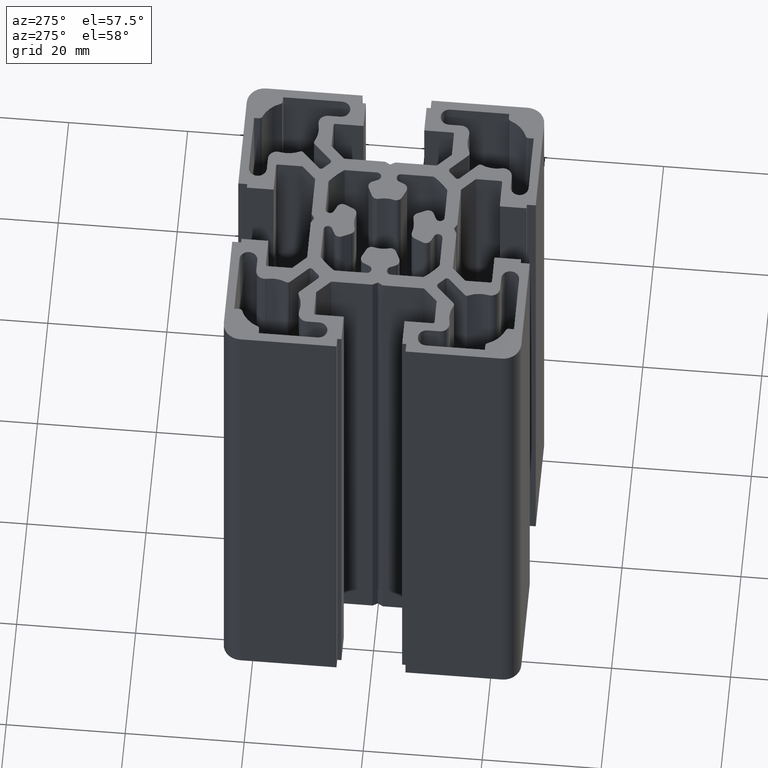
[diagram: clean part render]
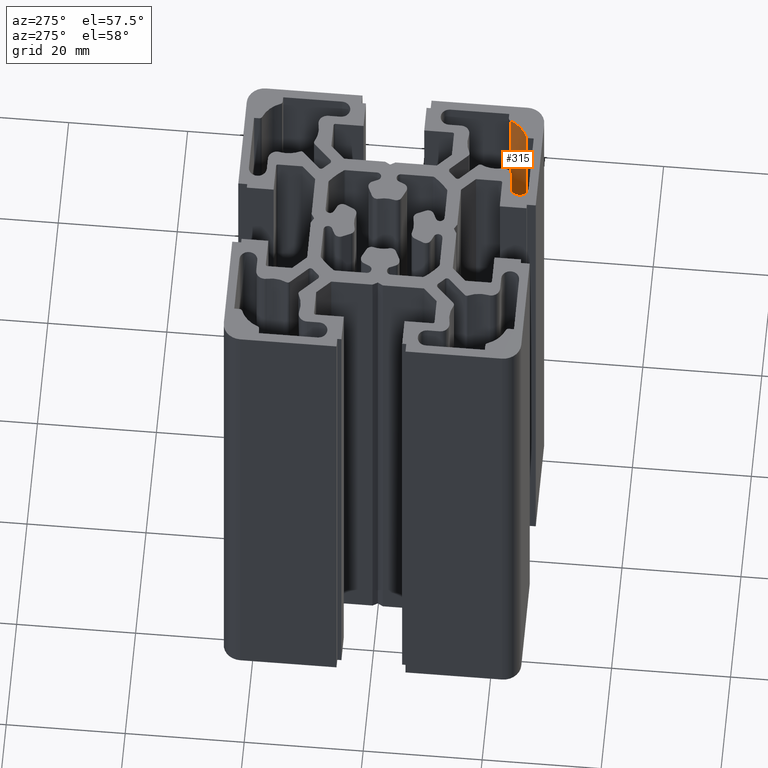
[diagram: same view with one face highlighted and labeled with its STEP entity id]
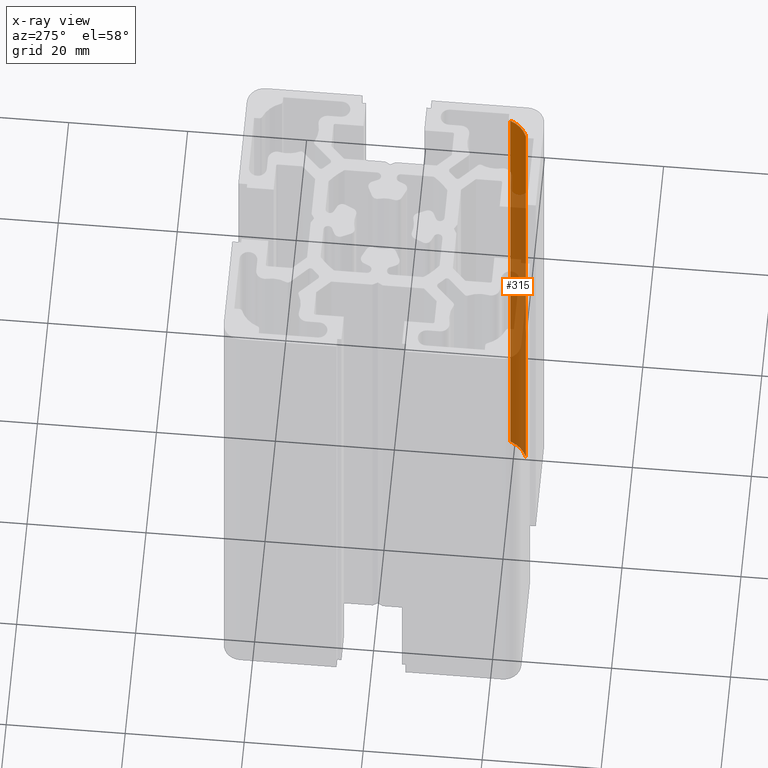
[diagram: x-ray of the same camera — body ghosted, the highlighted face saturated]
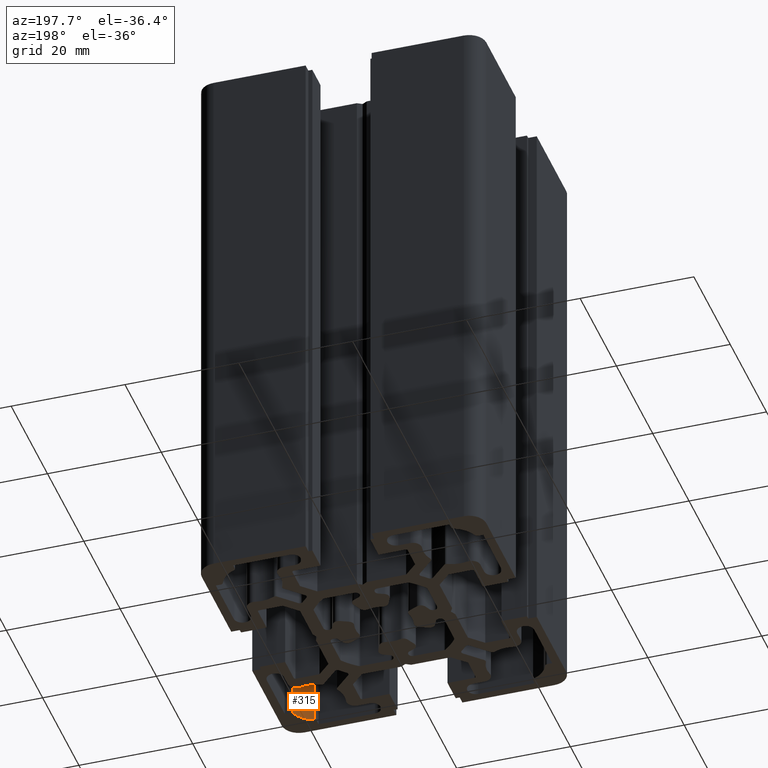
[diagram: same view with one face highlighted and labeled with its STEP entity id]
A machine part, auxiliary view. The second image highlights one B-rep face of the part: STEP entity #315.
The next image is the same camera in x-ray: the body ghosted, the highlighted face saturated — about 80% of this face is hidden behind the body in this view.
A second angle (auxiliary view) of the same face is appended — the face is thin or edge-on in the first view.
In plain terms, the highlighted cylindrical surface (edge-blend (fillet) strip) has radius 5 mm, axis along (-0, -0, -1).
Its self-contained STEP definition (entity closure, byte-faithful):
#307 = ORIENTED_EDGE ( 'NONE', *, *, #309, .F. ) ;
#309 = EDGE_CURVE ( 'NONE', #1060, #1825, #3478, .T. ) ;
#310 = ORIENTED_EDGE ( 'NONE', *, *, #1072, .T. ) ;
#312 = EDGE_LOOP ( 'NONE', ( #316, #307, #310, #359 ) ) ;
#315 = ADVANCED_FACE ( 'NONE', ( #3479 ), #3471, .F. ) ;
#316 = ORIENTED_EDGE ( 'NONE', *, *, #1831, .F. ) ;
#318 = EDGE_CURVE ( 'NONE', #1061, #1823, #3517, .T. ) ;
#359 = ORIENTED_EDGE ( 'NONE', *, *, #318, .T. ) ;
#1060 = VERTEX_POINT ( 'NONE', #4831 ) ;
#1061 = VERTEX_POINT ( 'NONE', #4830 ) ;
#1072 = EDGE_CURVE ( 'NONE', #1060, #1061, #4864, .T. ) ;
#1823 = VERTEX_POINT ( 'NONE', #6224 ) ;
#1825 = VERTEX_POINT ( 'NONE', #6207 ) ;
#1831 = EDGE_CURVE ( 'NONE', #1825, #1823, #6262, .T. ) ;
#3469 = VECTOR ( 'NONE', #3525, 1000.000000000000000 ) ;
#3470 = CARTESIAN_POINT ( 'NONE',  ( 19.31818181818178100, -22.15770489361803200, 100.0000000000000000 ) ) ;
#3471 = CYLINDRICAL_SURFACE ( 'NONE', #3474, 5.000000000000002700 ) ;
#3474 = AXIS2_PLACEMENT_3D ( 'NONE', #3524, #3481, #3520 ) ;
#3478 = LINE ( 'NONE', #3470, #3469 ) ;
#3479 = FACE_OUTER_BOUND ( 'NONE', #312, .T. ) ;
#3481 = DIRECTION ( 'NONE',  ( -0.0000000000000000000, -0.0000000000000000000, -1.000000000000000000 ) ) ;
#3514 = DIRECTION ( 'NONE',  ( -0.0000000000000000000, -0.0000000000000000000, -1.000000000000000000 ) ) ;
#3515 = VECTOR ( 'NONE', #3514, 1000.000000000000000 ) ;
#3516 = CARTESIAN_POINT ( 'NONE',  ( 22.15770489361797100, -19.31818181818185900, 100.0000000000000000 ) ) ;
#3517 = LINE ( 'NONE', #3516, #3515 ) ;
#3520 = DIRECTION ( 'NONE',  ( -1.000000000000000000, 0.0000000000000000000, 0.0000000000000000000 ) ) ;
#3524 = CARTESIAN_POINT ( 'NONE',  ( 17.49999999999997500, -17.50000000000002500, 100.0000000000000000 ) ) ;
#3525 = DIRECTION ( 'NONE',  ( -0.0000000000000000000, -0.0000000000000000000, -1.000000000000000000 ) ) ;
#4830 = CARTESIAN_POINT ( 'NONE',  ( 22.15770489361797100, -19.31818181818185900, 100.0000000000000000 ) ) ;
#4831 = CARTESIAN_POINT ( 'NONE',  ( 19.31818181818178100, -22.15770489361803200, 100.0000000000000000 ) ) ;
#4862 = DIRECTION ( 'NONE',  ( 1.000000000000000000, 0.0000000000000000000, 0.0000000000000000000 ) ) ;
#4863 = DIRECTION ( 'NONE',  ( 0.0000000000000000000, 0.0000000000000000000, 1.000000000000000000 ) ) ;
#4864 = CIRCLE ( 'NONE', #4871, 5.000000000000004400 ) ;
#4871 = AXIS2_PLACEMENT_3D ( 'NONE', #4879, #4863, #4862 ) ;
#4879 = CARTESIAN_POINT ( 'NONE',  ( 17.49999999999997500, -17.50000000000002500, 100.0000000000000000 ) ) ;
#6207 = CARTESIAN_POINT ( 'NONE',  ( 19.31818181818178100, -22.15770489361803200, 0.0000000000000000000 ) ) ;
#6208 = AXIS2_PLACEMENT_3D ( 'NONE', #6255, #6254, #6253 ) ;
#6224 = CARTESIAN_POINT ( 'NONE',  ( 22.15770489361797100, -19.31818181818185900, 0.0000000000000000000 ) ) ;
#6253 = DIRECTION ( 'NONE',  ( 1.000000000000000000, 0.0000000000000000000, 0.0000000000000000000 ) ) ;
#6254 = DIRECTION ( 'NONE',  ( 0.0000000000000000000, 0.0000000000000000000, 1.000000000000000000 ) ) ;
#6255 = CARTESIAN_POINT ( 'NONE',  ( 17.49999999999997500, -17.50000000000002500, 0.0000000000000000000 ) ) ;
#6262 = CIRCLE ( 'NONE', #6208, 5.000000000000004400 ) ;